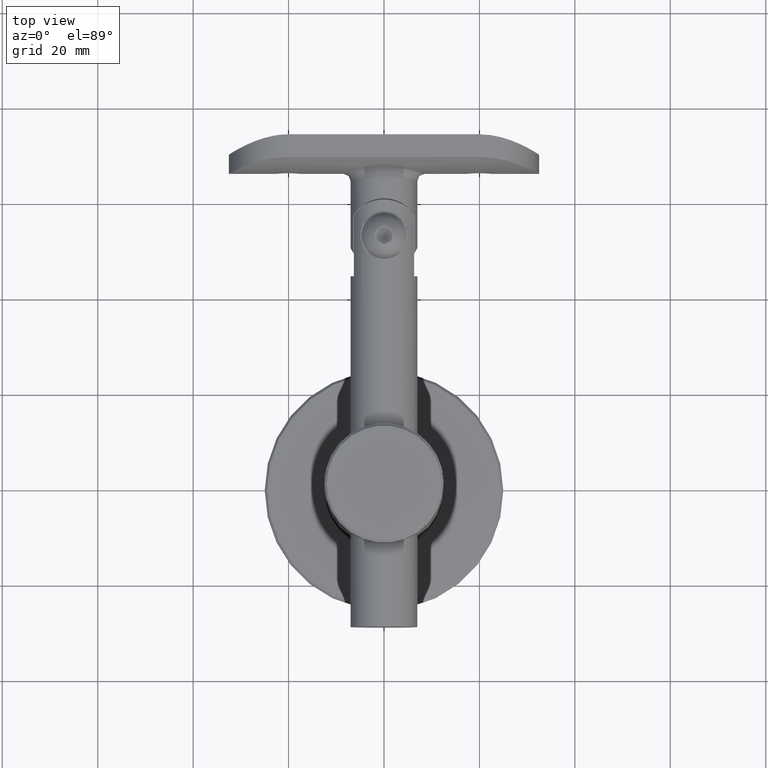
[diagram: clean part render]
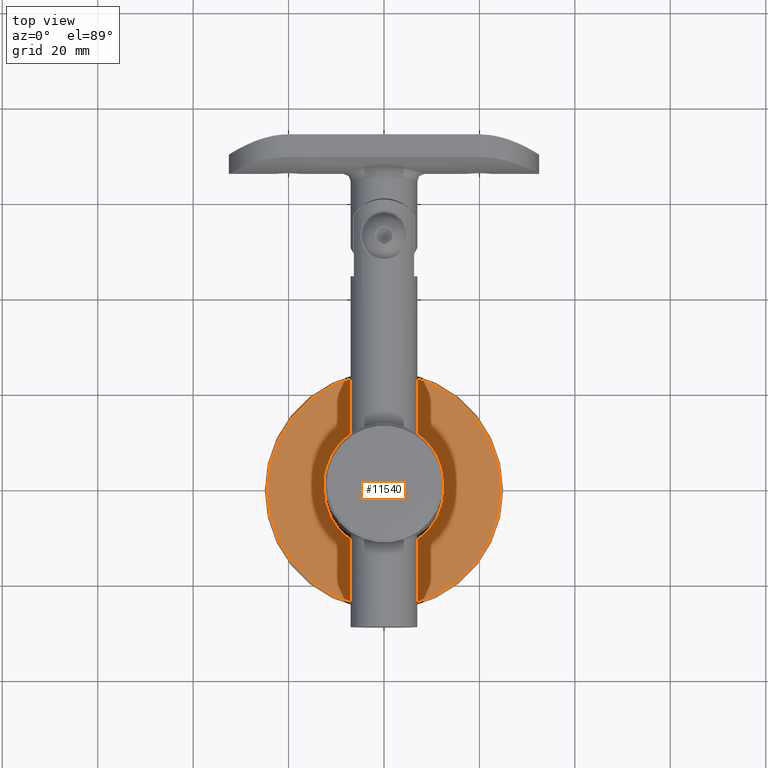
[diagram: same view with one face highlighted and labeled with its STEP entity id]
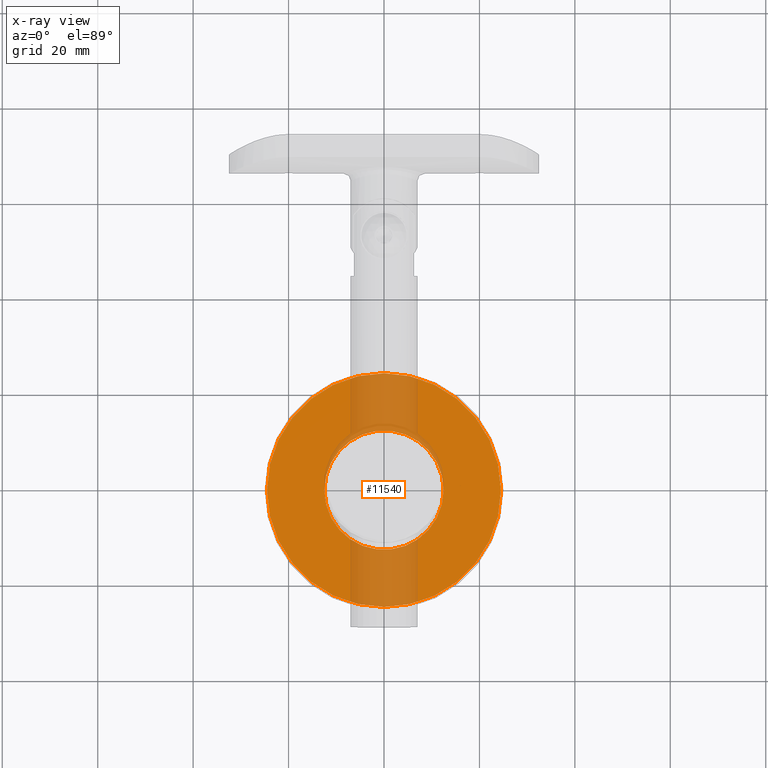
[diagram: x-ray of the same camera — body ghosted, the highlighted face saturated]
A machine part, top view. The second image highlights one B-rep face of the part: STEP entity #11540.
The next image is the same camera in x-ray: the body ghosted, the highlighted face saturated — about 26% of this face is hidden behind the body in this view.
In plain terms, the highlighted planar face has unit normal (0, 0, 1).
Its self-contained STEP definition (entity closure, byte-faithful):
#853 = EDGE_CURVE ( 'NONE', #10978, #10978, #12193, .T. ) ;
#4358 = DIRECTION ( 'NONE',  ( 1.000000000000000000, 0.0000000000000000000, 0.0000000000000000000 ) ) ;
#5507 = FACE_OUTER_BOUND ( 'NONE', #17750, .T. ) ;
#5605 = DIRECTION ( 'NONE',  ( 0.0000000000000000000, 0.0000000000000000000, 1.000000000000000000 ) ) ;
#5815 = DIRECTION ( 'NONE',  ( 0.0000000000000000000, 0.0000000000000000000, 1.000000000000000000 ) ) ;
#7049 = ORIENTED_EDGE ( 'NONE', *, *, #853, .F. ) ;
#8228 = DIRECTION ( 'NONE',  ( 0.0000000000000000000, 0.0000000000000000000, 1.000000000000000000 ) ) ;
#9430 = CARTESIAN_POINT ( 'NONE',  ( 24.49999999999998200, 0.0000000000000000000, 5.000000000000000000 ) ) ;
#10978 = VERTEX_POINT ( 'NONE', #12247 ) ;
#11076 = AXIS2_PLACEMENT_3D ( 'NONE', #16543, #5815, #16968 ) ;
#11540 = ADVANCED_FACE ( 'NONE', ( #5507, #18325 ), #12989, .T. ) ;
#11785 = EDGE_CURVE ( 'NONE', #15447, #15447, #20561, .T. ) ;
#12193 = CIRCLE ( 'NONE', #12431, 12.50000000000000000 ) ;
#12237 = ORIENTED_EDGE ( 'NONE', *, *, #11785, .T. ) ;
#12247 = CARTESIAN_POINT ( 'NONE',  ( 12.50000000000000000, 0.0000000000000000000, 5.000000000000004400 ) ) ;
#12431 = AXIS2_PLACEMENT_3D ( 'NONE', #16757, #5605, #4358 ) ;
#12989 = PLANE ( 'NONE',  #15081 ) ;
#14669 = CARTESIAN_POINT ( 'NONE',  ( 0.0000000000000000000, 0.0000000000000000000, 5.000000000000000000 ) ) ;
#15081 = AXIS2_PLACEMENT_3D ( 'NONE', #14669, #8228, #17608 ) ;
#15447 = VERTEX_POINT ( 'NONE', #9430 ) ;
#16543 = CARTESIAN_POINT ( 'NONE',  ( 0.0000000000000000000, 0.0000000000000000000, 5.000000000000000000 ) ) ;
#16757 = CARTESIAN_POINT ( 'NONE',  ( 0.0000000000000000000, 0.0000000000000000000, 5.000000000000004400 ) ) ;
#16968 = DIRECTION ( 'NONE',  ( 1.000000000000000000, 0.0000000000000000000, 0.0000000000000000000 ) ) ;
#17608 = DIRECTION ( 'NONE',  ( 1.000000000000000000, 0.0000000000000000000, -0.0000000000000000000 ) ) ;
#17750 = EDGE_LOOP ( 'NONE', ( #12237 ) ) ;
#18325 = FACE_BOUND ( 'NONE', #19377, .T. ) ;
#19377 = EDGE_LOOP ( 'NONE', ( #7049 ) ) ;
#20561 = CIRCLE ( 'NONE', #11076, 24.49999999999998200 ) ;